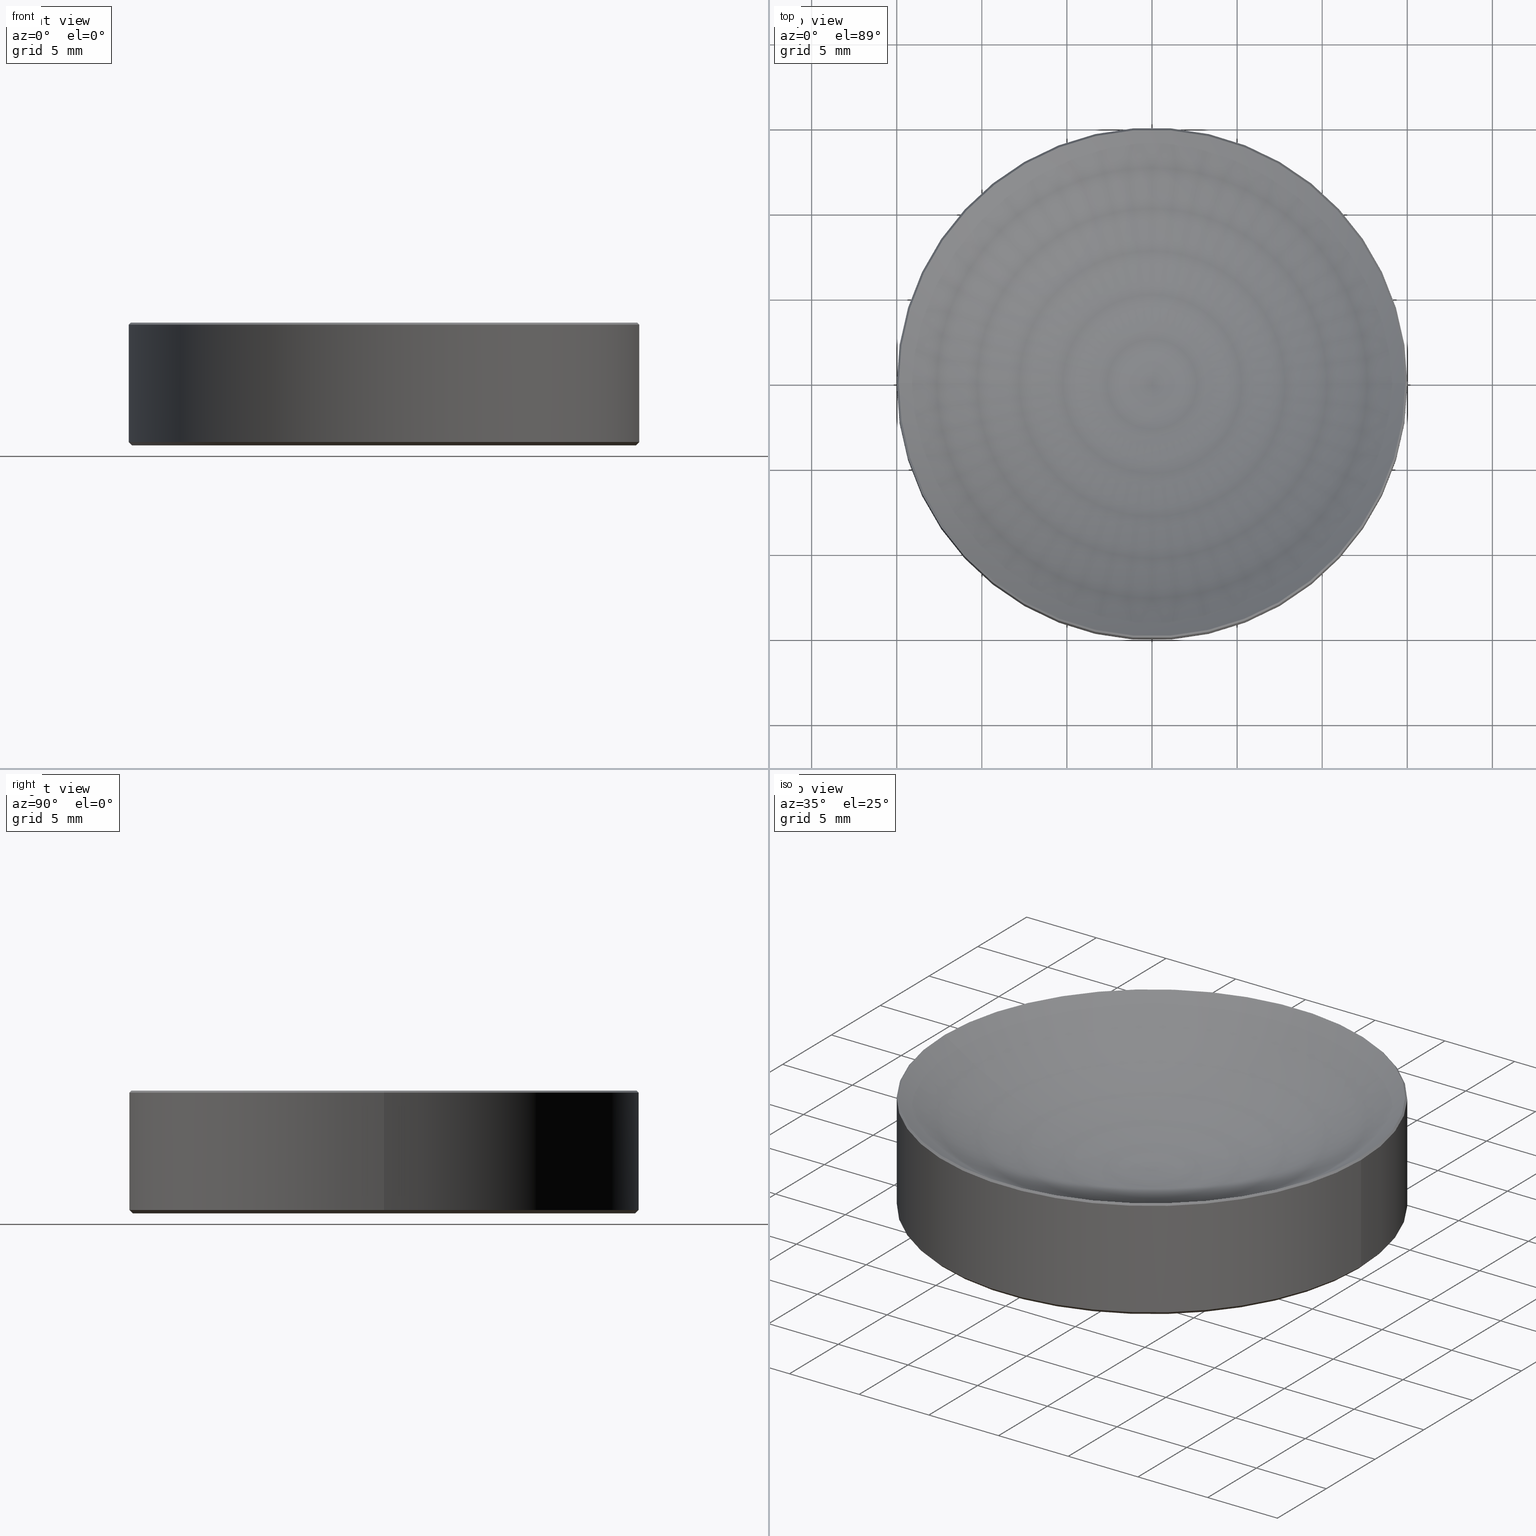
[diagram: canonical four-view strip — front | top / right | iso, engineering-drawing reading convention]
A machine part, canonical four-view strip (front | top / right | iso — engineering-drawing reading convention). The complete STEP part file that produces these views, byte-faithful:
ISO-10303-21;
HEADER;
FILE_DESCRIPTION (( 'STEP AP214' ),
    '1' );
FILE_NAME ('GL13-030-050.STEP',
    '2022-10-25T13:44:56',
    ( '' ),
    ( '' ),
    'SwSTEP 2.0',
    'SolidWorks 2022',
    '' );
FILE_SCHEMA (( 'AUTOMOTIVE_DESIGN' ));
ENDSEC;

DATA;
#1 = CARTESIAN_POINT ( 'NONE',  ( -0.0007999960371929404346, 0.000000000000000000, 28.33999998761621697 ) ) ;
#2 = SURFACE_STYLE_FILL_AREA ( #164 ) ;
#3 = DIRECTION ( 'NONE',  ( 1.000000000000000000, 0.000000000000000000, 0.000000000000000000 ) ) ;
#4 = APPLICATION_CONTEXT ( 'automotive_design' ) ;
#5 = COLOUR_RGB ( '',1.000000000000000000, 1.000000000000000000, 1.000000000000000000 ) ;
#6 = ORIENTED_EDGE ( 'NONE', *, *, #128, .F. ) ;
#7 = DIRECTION ( 'NONE',  ( -1.000000000000000000, 0.000000000000000000, 0.000000000000000000 ) ) ;
#8 = STYLED_ITEM ( 'NONE', ( #210 ), #206 ) ;
#9 = ORIENTED_EDGE ( 'NONE', *, *, #260, .T. ) ;
#10 = CARTESIAN_POINT ( 'NONE',  ( 0.000000000000000000, 0.000000000000000000, 9.184850993605147944E-16 ) ) ;
#11 = ORIENTED_EDGE ( 'NONE', *, *, #203, .F. ) ;
#12 = ORIENTED_EDGE ( 'NONE', *, *, #171, .T. ) ;
#13 = AXIS2_PLACEMENT_3D ( 'NONE', #10, #178, #155 ) ;
#14 = DIRECTION ( 'NONE',  ( 0.000000000000000000, -1.000000000000000000, 0.000000000000000000 ) ) ;
#15 = VECTOR ( 'NONE', #142, 1000.000000000000000 ) ;
#16 = ORIENTED_EDGE ( 'NONE', *, *, #121, .F. ) ;
#17 = ADVANCED_BREP_SHAPE_REPRESENTATION ( 'GL13-030-050', ( #206, #181 ), #65 ) ;
#18 = DIRECTION ( 'NONE',  ( 0.000000000000000000, 0.000000000000000000, -1.000000000000000000 ) ) ;
#19 = AXIS2_PLACEMENT_3D ( 'NONE', #60, #184, #41 ) ;
#20 = FACE_OUTER_BOUND ( 'NONE', #156, .T. ) ;
#21 = DIRECTION ( 'NONE',  ( 1.000000000000000000, 0.000000000000000000, 0.000000000000000000 ) ) ;
#22 = AXIS2_PLACEMENT_3D ( 'NONE', #104, #62, #90 ) ;
#23 = CIRCLE ( 'NONE', #83, 14.88295791347168162 ) ;
#24 = ORIENTED_EDGE ( 'NONE', *, *, #132, .F. ) ;
#25 = VECTOR ( 'NONE', #129, 1000.000000000000000 ) ;
#26 = FILL_AREA_STYLE ('',( #172 ) ) ;
#27 = LINE ( 'NONE', #252, #25 ) ;
#28 = SURFACE_SIDE_STYLE ('',( #192 ) ) ;
#29 = ORIENTED_EDGE ( 'NONE', *, *, #91, .T. ) ;
#30 = DIRECTION ( 'NONE',  ( 0.000000000000000000, -0.000000000000000000, 1.000000000000000000 ) ) ;
#31 = MECHANICAL_DESIGN_GEOMETRIC_PRESENTATION_REPRESENTATION (  '', ( #53 ), #119 ) ;
#32 = EDGE_LOOP ( 'NONE', ( #249, #241, #136, #108 ) ) ;
#33 = ORIENTED_EDGE ( 'NONE', *, *, #213, .F. ) ;
#34 = CARTESIAN_POINT ( 'NONE',  ( 0.000000000000000000, 0.000000000000000000, 0.000000000000000000 ) ) ;
#35 = CARTESIAN_POINT ( 'NONE',  ( -14.88295791347168162, 1.822636677057786445E-15, 7.217042086528313583 ) ) ;
#36 = AXIS2_PLACEMENT_3D ( 'NONE', #204, #101, #146 ) ;
#37 = CARTESIAN_POINT ( 'NONE',  ( 0.000000000000000000, 0.000000000000000000, 28.33999998761621697 ) ) ;
#38 = CARTESIAN_POINT ( 'NONE',  ( 15.00000000000000000, 0.000000000000000000, 7.100000000000005862 ) ) ;
#39 = LINE ( 'NONE', #188, #130 ) ;
#40 = COLOUR_RGB ( '',1.000000000000000000, 1.000000000000000000, 1.000000000000000000 ) ;
#41 = DIRECTION ( 'NONE',  ( 1.000000000000000000, 0.000000000000000000, 0.000000000000000000 ) ) ;
#42 = ADVANCED_FACE ( 'NONE', ( #199 ), #161, .T. ) ;
#43 = DIRECTION ( 'NONE',  ( -0.000000000000000000, -0.000000000000000000, 1.000000000000000000 ) ) ;
#44 = TOROIDAL_SURFACE ( 'NONE', #230, -0.0007999960371929404346, 25.83999999999999631 ) ;
#45 = AXIS2_PLACEMENT_3D ( 'NONE', #1, #14, #99 ) ;
#46 = AXIS2_PLACEMENT_3D ( 'NONE', #248, #18, #244 ) ;
#47 = APPLICATION_PROTOCOL_DEFINITION ( 'draft international standard', 'automotive_design', 1998, #4 ) ;
#48 = SHAPE_DEFINITION_REPRESENTATION ( #143, #17 ) ;
#49 = CIRCLE ( 'NONE', #149, 25.83999999999999631 ) ;
#50 = FACE_OUTER_BOUND ( 'NONE', #256, .T. ) ;
#51 = EDGE_LOOP ( 'NONE', ( #127, #154, #193, #29 ) ) ;
#52 = AXIS2_PLACEMENT_3D ( 'NONE', #157, #66, #7 ) ;
#53 = STYLED_ITEM ( 'NONE', ( #253 ), #17 ) ;
#54 = VERTEX_POINT ( 'NONE', #182 ) ;
#55 =( NAMED_UNIT ( * ) SI_UNIT ( $, .STERADIAN. ) SOLID_ANGLE_UNIT ( ) );
#56 = CARTESIAN_POINT ( 'NONE',  ( -15.00000000000000000, 1.836970198721029589E-15, 0.2000000000000013989 ) ) ;
#57 = DIRECTION ( 'NONE',  ( -0.000000000000000000, -0.000000000000000000, 1.000000000000000000 ) ) ;
#58 = CIRCLE ( 'NONE', #211, 15.00000000000000000 ) ;
#59 = PRODUCT_DEFINITION_FORMATION_WITH_SPECIFIED_SOURCE ( '�κ�', '', #179, .NOT_KNOWN. ) ;
#60 = CARTESIAN_POINT ( 'NONE',  ( 0.000000000000000000, 0.000000000000000000, 0.2000000000000013989 ) ) ;
#61 = CYLINDRICAL_SURFACE ( 'NONE', #107, 15.00000000000000000 ) ;
#62 = DIRECTION ( 'NONE',  ( -0.000000000000000000, -0.000000000000000000, 1.000000000000000000 ) ) ;
#63 = CARTESIAN_POINT ( 'NONE',  ( 0.000000000000000000, 0.000000000000000000, 2.500000000000000000 ) ) ;
#64 = CIRCLE ( 'NONE', #13, 14.79999999999999538 ) ;
#65 =( GEOMETRIC_REPRESENTATION_CONTEXT ( 3 ) GLOBAL_UNCERTAINTY_ASSIGNED_CONTEXT ( ( #138 ) ) GLOBAL_UNIT_ASSIGNED_CONTEXT ( ( #73, #198, #176 ) ) REPRESENTATION_CONTEXT ( 'NONE', 'WORKASPACE' ) );
#66 = DIRECTION ( 'NONE',  ( 0.000000000000000000, 0.000000000000000000, -1.000000000000000000 ) ) ;
#67 = AXIS2_PLACEMENT_3D ( 'NONE', #80, #225, #3 ) ;
#68 = PLANE ( 'NONE',  #186 ) ;
#69 = VERTEX_POINT ( 'NONE', #215 ) ;
#70 =( NAMED_UNIT ( * ) PLANE_ANGLE_UNIT ( ) SI_UNIT ( $, .RADIAN. ) );
#71 = EDGE_CURVE ( 'NONE', #54, #220, #76, .T. ) ;
#72 = ORIENTED_EDGE ( 'NONE', *, *, #150, .F. ) ;
#73 =( LENGTH_UNIT ( ) NAMED_UNIT ( * ) SI_UNIT ( .MILLI., .METRE. ) );
#74 = VERTEX_POINT ( 'NONE', #35 ) ;
#75 = CARTESIAN_POINT ( 'NONE',  ( 0.000000000000000000, 0.000000000000000000, 2.500000000000000000 ) ) ;
#76 = LINE ( 'NONE', #56, #135 ) ;
#77 = ADVANCED_FACE ( 'NONE', ( #100 ), #44, .F. ) ;
#78 = DIRECTION ( 'NONE',  ( 1.224646799147353207E-16, 1.000000000000000000, 0.000000000000000000 ) ) ;
#79 = ORIENTED_EDGE ( 'NONE', *, *, #71, .T. ) ;
#80 = CARTESIAN_POINT ( 'NONE',  ( 0.000000000000000000, 0.000000000000000000, 0.2000000000000013989 ) ) ;
#81 = CLOSED_SHELL ( 'NONE', ( #109, #42, #189, #77, #160, #240, #246, #139, #265 ) ) ;
#82 = AXIS2_PLACEMENT_3D ( 'NONE', #92, #95, #191 ) ;
#83 = AXIS2_PLACEMENT_3D ( 'NONE', #190, #57, #223 ) ;
#84 = CARTESIAN_POINT ( 'NONE',  ( 0.000000000000000000, 0.000000000000000000, 2.500000000000000000 ) ) ;
#85 = FILL_AREA_STYLE_COLOUR ( '', #5 ) ;
#86 = EDGE_CURVE ( 'NONE', #177, #159, #165, .T. ) ;
#87 = SURFACE_SIDE_STYLE ('',( #2 ) ) ;
#88 = ORIENTED_EDGE ( 'NONE', *, *, #196, .F. ) ;
#89 = VECTOR ( 'NONE', #228, 1000.000000000000000 ) ;
#90 = DIRECTION ( 'NONE',  ( 1.000000000000000000, 0.000000000000000000, 0.000000000000000000 ) ) ;
#91 = EDGE_CURVE ( 'NONE', #159, #243, #202, .T. ) ;
#92 = CARTESIAN_POINT ( 'NONE',  ( 0.000000000000000000, 0.000000000000000000, 7.217042086528315359 ) ) ;
#93 = AXIS2_PLACEMENT_3D ( 'NONE', #245, #145, #226 ) ;
#94 = ORIENTED_EDGE ( 'NONE', *, *, #217, .T. ) ;
#95 = DIRECTION ( 'NONE',  ( -0.000000000000000000, -0.000000000000000000, 1.000000000000000000 ) ) ;
#96 = PRESENTATION_LAYER_ASSIGNMENT (  '', '', ( #53 ) ) ;
#97 = VERTEX_POINT ( 'NONE', #63 ) ;
#98 = CARTESIAN_POINT ( 'NONE',  ( 0.000000000000000000, 0.000000000000000000, 0.2000000000000013989 ) ) ;
#99 = DIRECTION ( 'NONE',  ( 0.000000000000000000, 0.000000000000000000, -1.000000000000000000 ) ) ;
#100 = FACE_OUTER_BOUND ( 'NONE', #221, .T. ) ;
#101 = DIRECTION ( 'NONE',  ( 0.000000000000000000, 0.000000000000000000, -1.000000000000000000 ) ) ;
#102 = DIRECTION ( 'NONE',  ( 0.000000000000000000, 0.000000000000000000, -1.000000000000000000 ) ) ;
#103 = CONICAL_SURFACE ( 'NONE', #52, 14.88295791347168162, 0.7853981633974780330 ) ;
#104 = CARTESIAN_POINT ( 'NONE',  ( 0.000000000000000000, 0.000000000000000000, 0.2000000000000013989 ) ) ;
#105 = DIRECTION ( 'NONE',  ( -0.000000000000000000, -0.000000000000000000, 1.000000000000000000 ) ) ;
#106 = CARTESIAN_POINT ( 'NONE',  ( 0.000000000000000000, 0.000000000000000000, 7.100000000000005862 ) ) ;
#107 = AXIS2_PLACEMENT_3D ( 'NONE', #84, #105, #163 ) ;
#108 = ORIENTED_EDGE ( 'NONE', *, *, #151, .F. ) ;
#109 = ADVANCED_FACE ( 'NONE', ( #229 ), #232, .T. ) ;
#110 =( LENGTH_UNIT ( ) NAMED_UNIT ( * ) SI_UNIT ( .MILLI., .METRE. ) );
#111 = APPLICATION_PROTOCOL_DEFINITION ( 'draft international standard', 'automotive_design', 1998, #233 ) ;
#112 = ORIENTED_EDGE ( 'NONE', *, *, #121, .T. ) ;
#113 = CARTESIAN_POINT ( 'NONE',  ( -15.00000000000000000, 1.836970198721029589E-15, 0.2000000000000013989 ) ) ;
#114 = ORIENTED_EDGE ( 'NONE', *, *, #227, .T. ) ;
#115 = ORIENTED_EDGE ( 'NONE', *, *, #196, .T. ) ;
#116 = PRODUCT_CONTEXT ( 'NONE', #233, 'mechanical' ) ;
#117 =( LENGTH_UNIT ( ) NAMED_UNIT ( * ) SI_UNIT ( .MILLI., .METRE. ) );
#118 = ORIENTED_EDGE ( 'NONE', *, *, #91, .F. ) ;
#119 =( GEOMETRIC_REPRESENTATION_CONTEXT ( 3 ) GLOBAL_UNCERTAINTY_ASSIGNED_CONTEXT ( ( #134 ) ) GLOBAL_UNIT_ASSIGNED_CONTEXT ( ( #110, #70, #236 ) ) REPRESENTATION_CONTEXT ( 'NONE', 'WORKASPACE' ) );
#120 = CARTESIAN_POINT ( 'NONE',  ( 14.88295791347168162, 1.822636677057786445E-15, 7.217042086528315359 ) ) ;
#121 = EDGE_CURVE ( 'NONE', #74, #197, #23, .T. ) ;
#122 = DIRECTION ( 'NONE',  ( -0.000000000000000000, -0.000000000000000000, 1.000000000000000000 ) ) ;
#123 = CIRCLE ( 'NONE', #93, 14.79999999999999538 ) ;
#124 = DIRECTION ( 'NONE',  ( 0.7071067811865685560, 8.659560562355189238E-17, -0.7071067811865265895 ) ) ;
#125 = SURFACE_STYLE_USAGE ( .BOTH. , #87 ) ;
#126 = PRESENTATION_LAYER_ASSIGNMENT (  '', '', ( #8 ) ) ;
#127 = ORIENTED_EDGE ( 'NONE', *, *, #250, .F. ) ;
#128 = EDGE_CURVE ( 'NONE', #69, #177, #166, .T. ) ;
#129 = DIRECTION ( 'NONE',  ( -0.000000000000000000, -0.000000000000000000, 1.000000000000000000 ) ) ;
#130 = VECTOR ( 'NONE', #207, 1000.000000000000114 ) ;
#131 = CARTESIAN_POINT ( 'NONE',  ( -15.00000000000000000, 1.836970198721029589E-15, 7.100000000000005862 ) ) ;
#132 = EDGE_CURVE ( 'NONE', #177, #220, #200, .T. ) ;
#133 = DIRECTION ( 'NONE',  ( -0.000000000000000000, -0.000000000000000000, 1.000000000000000000 ) ) ;
#134 = UNCERTAINTY_MEASURE_WITH_UNIT (LENGTH_MEASURE( 1.000000000000000082E-05 ), #110, 'distance_accuracy_value', 'NONE');
#135 = VECTOR ( 'NONE', #140, 1000.000000000000000 ) ;
#136 = ORIENTED_EDGE ( 'NONE', *, *, #128, .T. ) ;
#137 = DIRECTION ( 'NONE',  ( 1.000000000000000000, 0.000000000000000000, 0.000000000000000000 ) ) ;
#138 = UNCERTAINTY_MEASURE_WITH_UNIT (LENGTH_MEASURE( 1.000000000000000082E-05 ), #73, 'distance_accuracy_value', 'NONE');
#139 = ADVANCED_FACE ( 'NONE', ( #148 ), #231, .T. ) ;
#140 = DIRECTION ( 'NONE',  ( -0.7071067811865536790, 8.659560562355008046E-17, 0.7071067811865414665 ) ) ;
#141 = CARTESIAN_POINT ( 'NONE',  ( 15.00000000000000000, 0.000000000000000000, 2.500000000000000000 ) ) ;
#142 = DIRECTION ( 'NONE',  ( -0.000000000000000000, -0.000000000000000000, 1.000000000000000000 ) ) ;
#143 = PRODUCT_DEFINITION_SHAPE ( 'NONE', 'NONE',  #208 ) ;
#144 = PRODUCT_RELATED_PRODUCT_CATEGORY ( 'part', '', ( #179 ) ) ;
#145 = DIRECTION ( 'NONE',  ( 0.000000000000000000, 0.000000000000000000, -1.000000000000000000 ) ) ;
#146 = DIRECTION ( 'NONE',  ( -1.000000000000000000, 0.000000000000000000, 0.000000000000000000 ) ) ;
#147 = AXIS2_PLACEMENT_3D ( 'NONE', #75, #152, #216 ) ;
#148 = FACE_OUTER_BOUND ( 'NONE', #32, .T. ) ;
#149 = AXIS2_PLACEMENT_3D ( 'NONE', #261, #78, #242 ) ;
#150 = EDGE_CURVE ( 'NONE', #197, #159, #162, .T. ) ;
#151 = EDGE_CURVE ( 'NONE', #220, #177, #173, .T. ) ;
#152 = DIRECTION ( 'NONE',  ( -0.000000000000000000, -0.000000000000000000, 1.000000000000000000 ) ) ;
#153 = PRODUCT_DEFINITION_CONTEXT ( 'detailed design', #4, 'design' ) ;
#154 = ORIENTED_EDGE ( 'NONE', *, *, #151, .T. ) ;
#155 = DIRECTION ( 'NONE',  ( 1.000000000000000000, 0.000000000000000000, 0.000000000000000000 ) ) ;
#156 = EDGE_LOOP ( 'NONE', ( #158, #259, #12, #212 ) ) ;
#157 = CARTESIAN_POINT ( 'NONE',  ( 0.000000000000000000, 0.000000000000000000, 7.217042086528315359 ) ) ;
#158 = ORIENTED_EDGE ( 'NONE', *, *, #132, .T. ) ;
#159 = VERTEX_POINT ( 'NONE', #38 ) ;
#160 = ADVANCED_FACE ( 'NONE', ( #209 ), #251, .F. ) ;
#161 = CONICAL_SURFACE ( 'NONE', #169, 15.00000000000000000, 0.7853981633974570498 ) ;
#162 = LINE ( 'NONE', #120, #167 ) ;
#163 = DIRECTION ( 'NONE',  ( 1.000000000000000000, 0.000000000000000000, 0.000000000000000000 ) ) ;
#164 = FILL_AREA_STYLE ('',( #85 ) ) ;
#165 = LINE ( 'NONE', #141, #15 ) ;
#166 = LINE ( 'NONE', #263, #89 ) ;
#167 = VECTOR ( 'NONE', #124, 1000.000000000000114 ) ;
#168 =( GEOMETRIC_REPRESENTATION_CONTEXT ( 3 ) GLOBAL_UNCERTAINTY_ASSIGNED_CONTEXT ( ( #180 ) ) GLOBAL_UNIT_ASSIGNED_CONTEXT ( ( #117, #224, #55 ) ) REPRESENTATION_CONTEXT ( 'NONE', 'WORKASPACE' ) );
#169 = AXIS2_PLACEMENT_3D ( 'NONE', #98, #133, #174 ) ;
#170 = FACE_OUTER_BOUND ( 'NONE', #51, .T. ) ;
#171 = EDGE_CURVE ( 'NONE', #243, #159, #58, .T. ) ;
#172 = FILL_AREA_STYLE_COLOUR ( '', #40 ) ;
#173 = CIRCLE ( 'NONE', #22, 15.00000000000000000 ) ;
#174 = DIRECTION ( 'NONE',  ( 1.000000000000000000, 0.000000000000000000, 0.000000000000000000 ) ) ;
#175 = ORIENTED_EDGE ( 'NONE', *, *, #203, .T. ) ;
#176 =( NAMED_UNIT ( * ) SI_UNIT ( $, .STERADIAN. ) SOLID_ANGLE_UNIT ( ) );
#177 = VERTEX_POINT ( 'NONE', #266 ) ;
#178 = DIRECTION ( 'NONE',  ( 0.000000000000000000, 0.000000000000000000, -1.000000000000000000 ) ) ;
#179 = PRODUCT ( 'GL13-030-050', 'GL13-030-050', '', ( #116 ) ) ;
#180 = UNCERTAINTY_MEASURE_WITH_UNIT (LENGTH_MEASURE( 1.000000000000000082E-05 ), #117, 'distance_accuracy_value', 'NONE');
#181 = AXIS2_PLACEMENT_3D ( 'NONE', #34, #239, #137 ) ;
#182 = CARTESIAN_POINT ( 'NONE',  ( -14.79999999999999538, 1.824723730729555837E-15, 9.184850993605147944E-16 ) ) ;
#183 = ORIENTED_EDGE ( 'NONE', *, *, #171, .F. ) ;
#184 = DIRECTION ( 'NONE',  ( -0.000000000000000000, -0.000000000000000000, 1.000000000000000000 ) ) ;
#185 = DIRECTION ( 'NONE',  ( -1.000000000000000000, 0.000000000000000000, 0.000000000000000000 ) ) ;
#186 = AXIS2_PLACEMENT_3D ( 'NONE', #214, #30, #258 ) ;
#187 = DIRECTION ( 'NONE',  ( 1.000000000000000000, 0.000000000000000000, 0.000000000000000000 ) ) ;
#188 = CARTESIAN_POINT ( 'NONE',  ( -14.88295791347168162, 0.000000000000000000, 7.217042086528315359 ) ) ;
#189 = ADVANCED_FACE ( 'NONE', ( #20 ), #61, .T. ) ;
#190 = CARTESIAN_POINT ( 'NONE',  ( 0.000000000000000000, 0.000000000000000000, 7.217042086528315359 ) ) ;
#191 = DIRECTION ( 'NONE',  ( 1.000000000000000000, 0.000000000000000000, 0.000000000000000000 ) ) ;
#192 = SURFACE_STYLE_FILL_AREA ( #26 ) ;
#193 = ORIENTED_EDGE ( 'NONE', *, *, #86, .T. ) ;
#194 = CIRCLE ( 'NONE', #82, 14.88295791347168162 ) ;
#195 = ORIENTED_EDGE ( 'NONE', *, *, #213, .T. ) ;
#196 = EDGE_CURVE ( 'NONE', #54, #69, #123, .T. ) ;
#197 = VERTEX_POINT ( 'NONE', #247 ) ;
#198 =( NAMED_UNIT ( * ) PLANE_ANGLE_UNIT ( ) SI_UNIT ( $, .RADIAN. ) );
#199 = FACE_OUTER_BOUND ( 'NONE', #218, .T. ) ;
#200 = CIRCLE ( 'NONE', #19, 15.00000000000000000 ) ;
#201 = EDGE_LOOP ( 'NONE', ( #262, #257, #183, #11 ) ) ;
#202 = CIRCLE ( 'NONE', #46, 15.00000000000000000 ) ;
#203 = EDGE_CURVE ( 'NONE', #74, #243, #39, .T. ) ;
#204 = CARTESIAN_POINT ( 'NONE',  ( 0.000000000000000000, 0.000000000000000000, 7.217042086528315359 ) ) ;
#205 = CARTESIAN_POINT ( 'NONE',  ( 0.000000000000000000, 0.000000000000000000, 28.33999998761621697 ) ) ;
#206 = MANIFOLD_SOLID_BREP ( '����2', #81 ) ;
#207 = DIRECTION ( 'NONE',  ( -0.7071067811865685560, 0.000000000000000000, -0.7071067811865265895 ) ) ;
#208 = PRODUCT_DEFINITION ( 'δ֪', '', #59, #153 ) ;
#209 = FACE_OUTER_BOUND ( 'NONE', #255, .T. ) ;
#210 = PRESENTATION_STYLE_ASSIGNMENT (( #125 ) ) ;
#211 = AXIS2_PLACEMENT_3D ( 'NONE', #106, #102, #185 ) ;
#212 = ORIENTED_EDGE ( 'NONE', *, *, #86, .F. ) ;
#213 = EDGE_CURVE ( 'NONE', #97, #197, #264, .T. ) ;
#214 = CARTESIAN_POINT ( 'NONE',  ( 0.000000000000000000, 0.000000000000000000, 9.184850993605147944E-16 ) ) ;
#215 = CARTESIAN_POINT ( 'NONE',  ( 14.79999999999999538, 0.000000000000000000, 9.184850993605147944E-16 ) ) ;
#216 = DIRECTION ( 'NONE',  ( 1.000000000000000000, 0.000000000000000000, 0.000000000000000000 ) ) ;
#217 = EDGE_CURVE ( 'NONE', #97, #74, #49, .T. ) ;
#218 = EDGE_LOOP ( 'NONE', ( #88, #79, #24, #6 ) ) ;
#219 = SURFACE_STYLE_USAGE ( .BOTH. , #28 ) ;
#220 = VERTEX_POINT ( 'NONE', #113 ) ;
#221 = EDGE_LOOP ( 'NONE', ( #33, #94, #112 ) ) ;
#222 = AXIS2_PLACEMENT_3D ( 'NONE', #205, #43, #187 ) ;
#223 = DIRECTION ( 'NONE',  ( 1.000000000000000000, 0.000000000000000000, 0.000000000000000000 ) ) ;
#224 =( NAMED_UNIT ( * ) PLANE_ANGLE_UNIT ( ) SI_UNIT ( $, .RADIAN. ) );
#225 = DIRECTION ( 'NONE',  ( -0.000000000000000000, -0.000000000000000000, 1.000000000000000000 ) ) ;
#226 = DIRECTION ( 'NONE',  ( 1.000000000000000000, 0.000000000000000000, 0.000000000000000000 ) ) ;
#227 = EDGE_CURVE ( 'NONE', #197, #74, #194, .T. ) ;
#228 = DIRECTION ( 'NONE',  ( 0.7071067811865536790, 0.000000000000000000, 0.7071067811865414665 ) ) ;
#229 = FACE_OUTER_BOUND ( 'NONE', #201, .T. ) ;
#230 = AXIS2_PLACEMENT_3D ( 'NONE', #37, #122, #21 ) ;
#231 = CONICAL_SURFACE ( 'NONE', #67, 15.00000000000000000, 0.7853981633974570498 ) ;
#232 = CONICAL_SURFACE ( 'NONE', #36, 14.88295791347168162, 0.7853981633974780330 ) ;
#233 = APPLICATION_CONTEXT ( 'automotive_design' ) ;
#234 = CYLINDRICAL_SURFACE ( 'NONE', #147, 15.00000000000000000 ) ;
#235 = EDGE_LOOP ( 'NONE', ( #9, #115 ) ) ;
#236 =( NAMED_UNIT ( * ) SI_UNIT ( $, .STERADIAN. ) SOLID_ANGLE_UNIT ( ) );
#237 = ORIENTED_EDGE ( 'NONE', *, *, #217, .F. ) ;
#238 = FACE_OUTER_BOUND ( 'NONE', #235, .T. ) ;
#239 = DIRECTION ( 'NONE',  ( 0.000000000000000000, 0.000000000000000000, 1.000000000000000000 ) ) ;
#240 = ADVANCED_FACE ( 'NONE', ( #170 ), #234, .T. ) ;
#241 = ORIENTED_EDGE ( 'NONE', *, *, #260, .F. ) ;
#242 = DIRECTION ( 'NONE',  ( -1.000000000000000000, 1.224646799147352961E-16, 0.000000000000000000 ) ) ;
#243 = VERTEX_POINT ( 'NONE', #131 ) ;
#244 = DIRECTION ( 'NONE',  ( -1.000000000000000000, 0.000000000000000000, 0.000000000000000000 ) ) ;
#245 = CARTESIAN_POINT ( 'NONE',  ( 0.000000000000000000, 0.000000000000000000, 9.184850993605147944E-16 ) ) ;
#246 = ADVANCED_FACE ( 'NONE', ( #238 ), #68, .F. ) ;
#247 = CARTESIAN_POINT ( 'NONE',  ( 14.88295791347168162, 0.000000000000000000, 7.217042086528313583 ) ) ;
#248 = CARTESIAN_POINT ( 'NONE',  ( 0.000000000000000000, 0.000000000000000000, 7.100000000000005862 ) ) ;
#249 = ORIENTED_EDGE ( 'NONE', *, *, #71, .F. ) ;
#250 = EDGE_CURVE ( 'NONE', #220, #243, #27, .T. ) ;
#251 = TOROIDAL_SURFACE ( 'NONE', #222, -0.0007999960371929404346, 25.83999999999999631 ) ;
#252 = CARTESIAN_POINT ( 'NONE',  ( -15.00000000000000000, 1.836970198721029589E-15, 2.500000000000000000 ) ) ;
#253 = PRESENTATION_STYLE_ASSIGNMENT (( #219 ) ) ;
#254 = MECHANICAL_DESIGN_GEOMETRIC_PRESENTATION_REPRESENTATION (  '', ( #8 ), #168 ) ;
#255 = EDGE_LOOP ( 'NONE', ( #237, #195, #114 ) ) ;
#256 = EDGE_LOOP ( 'NONE', ( #72, #16, #175, #118 ) ) ;
#257 = ORIENTED_EDGE ( 'NONE', *, *, #150, .T. ) ;
#258 = DIRECTION ( 'NONE',  ( 1.000000000000000000, 0.000000000000000000, 0.000000000000000000 ) ) ;
#259 = ORIENTED_EDGE ( 'NONE', *, *, #250, .T. ) ;
#260 = EDGE_CURVE ( 'NONE', #69, #54, #64, .T. ) ;
#261 = CARTESIAN_POINT ( 'NONE',  ( 0.0007999960371929404346, -9.797125862789014462E-20, 28.33999998761621697 ) ) ;
#262 = ORIENTED_EDGE ( 'NONE', *, *, #227, .F. ) ;
#263 = CARTESIAN_POINT ( 'NONE',  ( 15.00000000000000000, 0.000000000000000000, 0.2000000000000013989 ) ) ;
#264 = CIRCLE ( 'NONE', #45, 25.83999999999999631 ) ;
#265 = ADVANCED_FACE ( 'NONE', ( #50 ), #103, .T. ) ;
#266 = CARTESIAN_POINT ( 'NONE',  ( 15.00000000000000000, 0.000000000000000000, 0.2000000000000013989 ) ) ;
ENDSEC;
END-ISO-10303-21;
